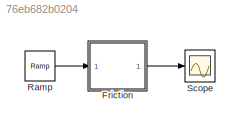
MODEL slx_76eb682b0204
KIND model
CONFIG AbsTol = auto
CONFIG FixedStep = auto
CONFIG MaxStep = auto
CONFIG MinStep = auto
CONFIG RelTol = 1e-3
CONFIG SampleTimeConstraint = Unconstrained
CONFIG Solver = ode45
CONFIG SolverMode = Auto
CONFIG SolverName = ode45
CONFIG StartTime = 0.0
CONFIG StopTime = 4
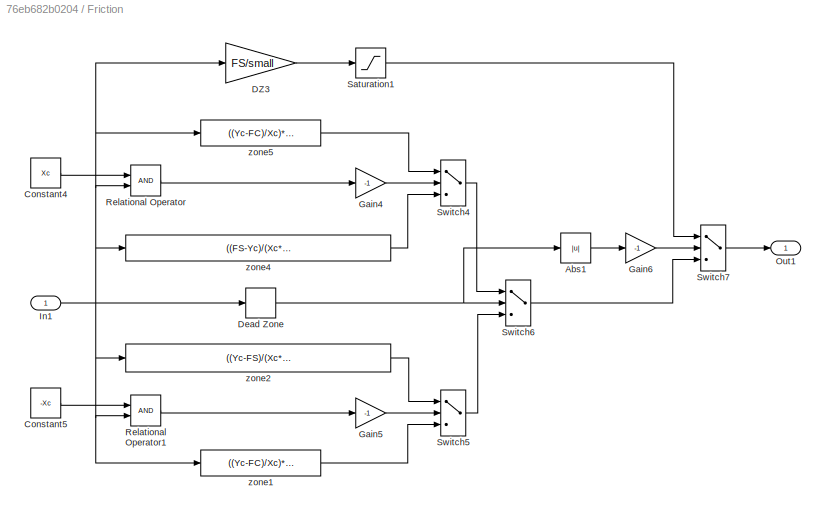
BLOCK [SubSystem] Friction
  Ports = [1, 1]
  RequestExecContextInheritance = off
BLOCK [Abs] Friction/Abs1
  SaturateOnIntegerOverflow = off
BLOCK [Constant] Friction/Constant4
  Value = Xc
BLOCK [Constant] Friction/Constant5
  Value = -Xc
BLOCK [Gain] Friction/DZ3
  Gain = FS/small
  OutDataTypeStr = Inherit: Inherit via internal rule
  ParamDataTypeStr = Inherit: Inherit via internal rule
  SaturateOnIntegerOverflow = off
BLOCK [DeadZone] Friction/Dead Zone
  LowerValue = -DZcv
  UpperValue = DZcv
BLOCK [Gain] Friction/Gain4
  Gain = -1
  OutDataTypeStr = Inherit: Inherit via internal rule
  ParamDataTypeStr = Inherit: Inherit via internal rule
  SaturateOnIntegerOverflow = off
BLOCK [Gain] Friction/Gain5
  Gain = -1
  OutDataTypeStr = Inherit: Inherit via internal rule
  ParamDataTypeStr = Inherit: Inherit via internal rule
  SaturateOnIntegerOverflow = off
BLOCK [Gain] Friction/Gain6
  Gain = -1
  OutDataTypeStr = Inherit: Inherit via internal rule
  ParamDataTypeStr = Inherit: Inherit via internal rule
  SaturateOnIntegerOverflow = off
BLOCK [Inport] Friction/In1
  IconDisplay = Port number
BLOCK [Outport] Friction/Out1
  IconDisplay = Port number
BLOCK [RelationalOperator] Friction/Relational Operator
  InputSameDT = off
  OutDataTypeStr = boolean
  Ports = [2, 1]
BLOCK [RelationalOperator] Friction/Relational Operator1
  InputSameDT = off
  OutDataTypeStr = boolean
  Ports = [2, 1]
BLOCK [Saturate] Friction/Saturation1
  InputPortMap = u0
  LowerLimit = -FS
  Ports = [1, 1]
  UpperLimit = FS
BLOCK [Switch] Friction/Switch4
  InputSameDT = off
  SaturateOnIntegerOverflow = off
BLOCK [Switch] Friction/Switch5
  InputSameDT = off
  SaturateOnIntegerOverflow = off
BLOCK [Switch] Friction/Switch6
  InputSameDT = off
  SaturateOnIntegerOverflow = off
BLOCK [Switch] Friction/Switch7
  InputSameDT = off
  SaturateOnIntegerOverflow = off
BLOCK [Fcn] Friction/zone1
  Expr = ((Yc-FC)/Xc)*u(1)-FC
BLOCK [Fcn] Friction/zone2
  Expr = ((Yc-FS)/(Xc*Xc))*(u(1)*u(1))+((2*(Yc-FS))/Xc)*u(1)-FS
BLOCK [Fcn] Friction/zone4
  Expr = ((FS-Yc)/(Xc*Xc))*(u(1)*u(1))-((2*(FS-Yc))/Xc)*u(1)+FS
BLOCK [Fcn] Friction/zone5
  Expr = ((Yc-FC)/Xc)*u(1)+FC
BLOCK [Reference] Ramp  REF=simulink/Sources/Ramp
  Ports = [0, 1]
  SourceBlock = simulink/Sources/Ramp
  SourceType = Ramp
  VectorParams1D = on
  X0 = -2
  slope = 1
  start = 0
BLOCK [Scope] Scope
  Floating = off
  LimitDataPoints = off
  NumInputPorts = 1
  Ports = [1]
  ZoomMode = yonly
LINE Friction/Abs1:1 -> Friction/Gain6:1
LINE Friction/Constant4:1 -> Friction/Relational Operator:1
LINE Friction/Constant5:1 -> Friction/Relational Operator1:1
LINE Friction/DZ3:1 -> Friction/Saturation1:1
NET Friction/Dead Zone:1 -> Friction/Abs1:1, Friction/Switch6:2
LINE Friction/Gain4:1 -> Friction/Switch4:2
LINE Friction/Gain5:1 -> Friction/Switch5:2
LINE Friction/Gain6:1 -> Friction/Switch7:2
NET Friction/In1:1 -> Friction/DZ3:1, Friction/Dead Zone:1, Friction/Relational Operator1:2, Friction/Relational Operator:2, Friction/zone1:1, Friction/zone2:1, Friction/zone4:1, Friction/zone5:1
LINE Friction/Relational Operator1:1 -> Friction/Gain5:1
LINE Friction/Relational Operator:1 -> Friction/Gain4:1
LINE Friction/Saturation1:1 -> Friction/Switch7:1
LINE Friction/Switch4:1 -> Friction/Switch6:1
LINE Friction/Switch5:1 -> Friction/Switch6:3
LINE Friction/Switch6:1 -> Friction/Switch7:3
LINE Friction/Switch7:1 -> Friction/Out1:1
LINE Friction/zone1:1 -> Friction/Switch5:3
LINE Friction/zone2:1 -> Friction/Switch5:1
LINE Friction/zone4:1 -> Friction/Switch4:3
LINE Friction/zone5:1 -> Friction/Switch4:1
LINE Friction:1 -> Scope:1
LINE Ramp:1 -> Friction:1
note: NET lines group one-source signal fan-out (src -> all destinations, sorted); 1:1 wires keep LINE
